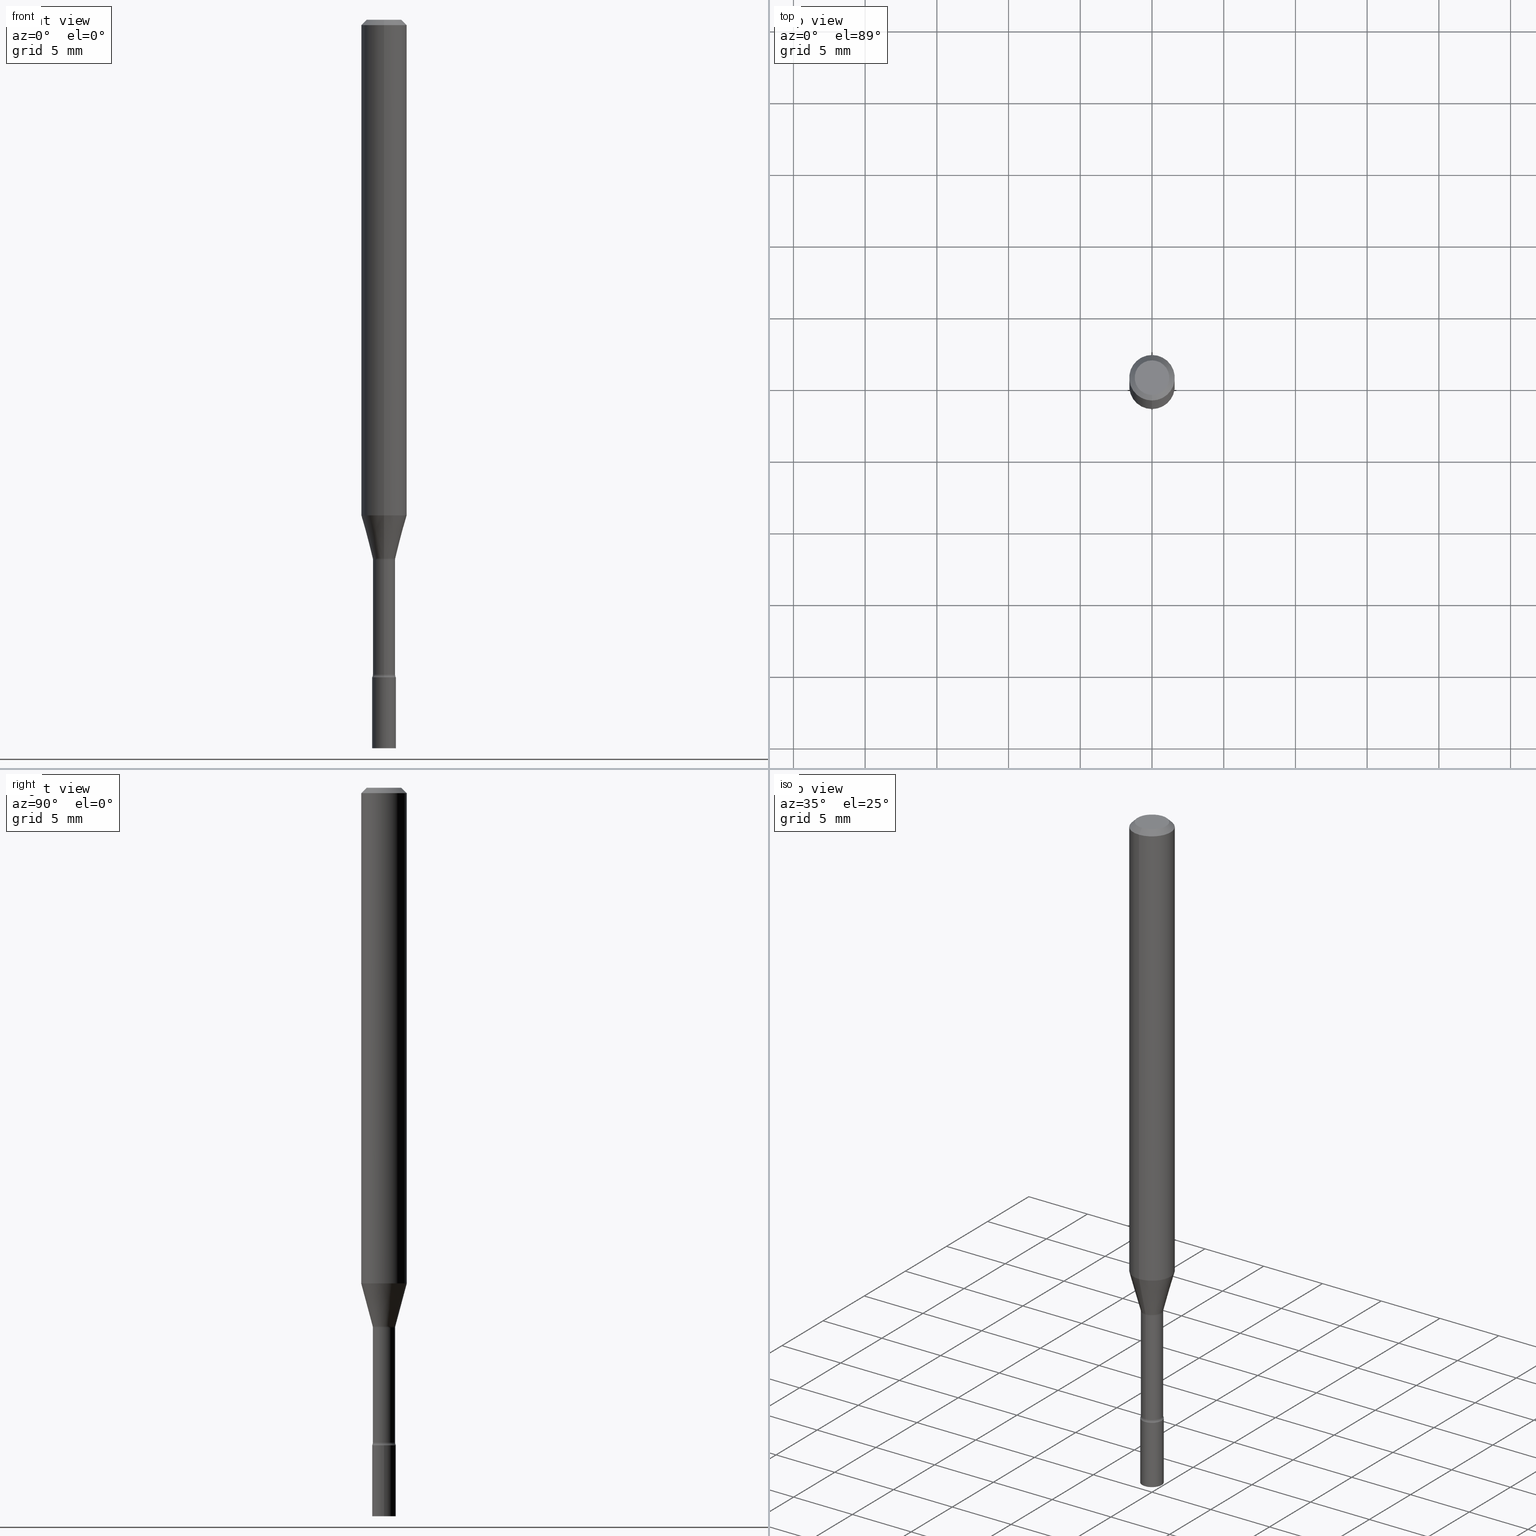
[diagram: canonical four-view strip — front | top / right | iso, engineering-drawing reading convention]
A machine part, canonical four-view strip (front | top / right | iso — engineering-drawing reading convention). The complete STEP part file that produces these views, byte-faithful:
ISO-10303-21;
HEADER;
FILE_DESCRIPTION (( 'STEP AP203' ),
    '1' );
FILE_NAME ('01325.STEP',
    '2024-03-08T21:14:09',
    ( '' ),
    ( '' ),
    'SwSTEP 2.0',
    'SolidWorks 2023',
    '' );
FILE_SCHEMA (( 'CONFIG_CONTROL_DESIGN' ));
ENDSEC;

DATA;
#1 = CARTESIAN_POINT ( 'NONE',  ( 3.614594936312366017E-29, -5.160781319692296101E-15, -1.478092501787273250 ) ) ;
#2 = EDGE_CURVE ( 'NONE', #294, #103, #283, .T. ) ;
#3 = ADVANCED_BREP_SHAPE_REPRESENTATION ( '01325', ( #263, #98, #183 ), #414 ) ;
#4 = ORIENTED_EDGE ( 'NONE', *, *, #335, .F. ) ;
#5 =( NAMED_UNIT ( * ) SI_UNIT ( $, .STERADIAN. ) SOLID_ANGLE_UNIT ( ) );
#6 = DIRECTION ( 'NONE',  ( -6.982962677686266711E-15, -1.000000000000000000, 3.491514444090614755E-15 ) ) ;
#7 = AXIS2_PLACEMENT_3D ( 'NONE', #409, #130, #495 ) ;
#8 = CARTESIAN_POINT ( 'NONE',  ( 3.668168533371585794E-31, -5.237271666135932017E-17, -0.01500000000000003067 ) ) ;
#9 = CIRCLE ( 'NONE', #137, 0.03250000000000000111 ) ;
#10 = PRODUCT_RELATED_PRODUCT_CATEGORY ( 'detail', '', ( #204 ) ) ;
#11 = DATE_AND_TIME ( #94, #436 ) ;
#12 = DIRECTION ( 'NONE',  ( -6.982962677686265922E-15, -1.000000000000000000, 3.491514444090614360E-15 ) ) ;
#13 = PERSON_AND_ORGANIZATION ( #312, #154 ) ;
#14 = COORDINATED_UNIVERSAL_TIME_OFFSET ( 5, 0, .BEHIND. ) ;
#15 = AXIS2_PLACEMENT_3D ( 'NONE', #89, #373, #213 ) ;
#16 = VERTEX_POINT ( 'NONE', #168 ) ;
#17 = CARTESIAN_POINT ( 'NONE',  ( 3.236522161387698617E-16, 0.04554999999999376908, -1.797604224178627641 ) ) ;
#18 = DATE_TIME_ROLE ( 'classification_date' ) ;
#19 = AXIS2_PLACEMENT_3D ( 'NONE', #166, #368, #6 ) ;
#20 = VERTEX_POINT ( 'NONE', #195 ) ;
#21 = ORIENTED_EDGE ( 'NONE', *, *, #223, .F. ) ;
#22 = ORIENTED_EDGE ( 'NONE', *, *, #320, .F. ) ;
#23 = CIRCLE ( 'NONE', #19, 0.04749999999999999362 ) ;
#24 = CIRCLE ( 'NONE', #160, 0.06250000000000000000 ) ;
#25 = VERTEX_POINT ( 'NONE', #276 ) ;
#26 = ADVANCED_FACE ( 'NONE', ( #407 ), #200, .F. ) ;
#27 = DIRECTION ( 'NONE',  ( -2.445445688914385754E-29, 3.491514444090614360E-15, 1.000000000000000000 ) ) ;
#28 = CARTESIAN_POINT ( 'NONE',  ( 4.414029468490465971E-29, -6.302183571583559709E-15, -1.804999999999999938 ) ) ;
#29 = CIRCLE ( 'NONE', #15, 0.03250000000000000111 ) ;
#30 = CYLINDRICAL_SURFACE ( 'NONE', #185, 0.03250000000000000111 ) ;
#31 = EDGE_CURVE ( 'NONE', #54, #205, #23, .T. ) ;
#32 = DIRECTION ( 'NONE',  ( -6.982962677686265922E-15, -1.000000000000000000, 4.370956789862821150E-15 ) ) ;
#33 = EDGE_CURVE ( 'NONE', #54, #16, #326, .T. ) ;
#34 = DIRECTION ( 'NONE',  ( -6.982962677686265922E-15, -1.000000000000000000, 3.491514444090614360E-15 ) ) ;
#35 = LOCAL_TIME ( 16, 14, 9.000000000000000000, #174 ) ;
#36 = DIRECTION ( 'NONE',  ( -2.445468806185136597E-29, 3.491481338843145583E-15, 1.000000000000000000 ) ) ;
#37 = CARTESIAN_POINT ( 'NONE',  ( 0.000000000000000000, 0.000000000000000000, 0.000000000000000000 ) ) ;
#38 = CARTESIAN_POINT ( 'NONE',  ( 3.316907271900976096E-16, 0.04749999999999999362, -1.803031053086112847E-16 ) ) ;
#39 = ORIENTED_EDGE ( 'NONE', *, *, #267, .T. ) ;
#40 = ORIENTED_EDGE ( 'NONE', *, *, #417, .T. ) ;
#41 = CARTESIAN_POINT ( 'NONE',  ( -0.03250000000000000111, -6.411616858027052188E-15, -2.000000000000000000 ) ) ;
#42 = ADVANCED_FACE ( 'NONE', ( #517 ), #72, .F. ) ;
#43 = ORIENTED_EDGE ( 'NONE', *, *, #33, .T. ) ;
#44 = APPROVAL_STATUS ( 'not_yet_approved' ) ;
#45 = VECTOR ( 'NONE', #123, 39.37007874015748854 ) ;
#46 = DIRECTION ( 'NONE',  ( -2.445445688914385754E-29, 3.491514444090614360E-15, 1.000000000000000000 ) ) ;
#47 = CLOSED_SHELL ( 'NONE', ( #164, #175, #188, #165 ) ) ;
#48 = AXIS2_PLACEMENT_3D ( 'NONE', #352, #106, #476 ) ;
#49 = COORDINATED_UNIVERSAL_TIME_OFFSET ( 5, 0, .BEHIND. ) ;
#50 = SECURITY_CLASSIFICATION_LEVEL ( 'unclassified' ) ;
#51 = ORIENTED_EDGE ( 'NONE', *, *, #33, .F. ) ;
#52 = MECHANICAL_CONTEXT ( 'NONE', #348, 'mechanical' ) ;
#53 = EDGE_CURVE ( 'NONE', #134, #99, #303, .T. ) ;
#54 = VERTEX_POINT ( 'NONE', #400 ) ;
#55 = APPLICATION_PROTOCOL_DEFINITION ( 'international standard', 'config_control_design', 1994, #348 ) ;
#56 = FACE_OUTER_BOUND ( 'NONE', #218, .T. ) ;
#57 = CC_DESIGN_APPROVAL ( #285, ( #394 ) ) ;
#58 = ORIENTED_EDGE ( 'NONE', *, *, #179, .T. ) ;
#59 = DIRECTION ( 'NONE',  ( 1.000000000000000000, -7.105427357601001070E-15, 4.926315913964436247E-29 ) ) ;
#60 = EDGE_CURVE ( 'NONE', #480, #428, #306, .T. ) ;
#61 = ORIENTED_EDGE ( 'NONE', *, *, #430, .F. ) ;
#62 = EDGE_LOOP ( 'NONE', ( #386, #264, #284, #346 ) ) ;
#63 = AXIS2_PLACEMENT_3D ( 'NONE', #393, #189, #398 ) ;
#64 = AXIS2_PLACEMENT_3D ( 'NONE', #191, #225, #150 ) ;
#65 = CARTESIAN_POINT ( 'NONE',  ( 0.000000000000000000, 0.000000000000000000, 0.000000000000000000 ) ) ;
#66 = CYLINDRICAL_SURFACE ( 'NONE', #336, 0.06250000000000000000 ) ;
#67 = EDGE_CURVE ( 'NONE', #294, #140, #292, .T. ) ;
#68 = AXIS2_PLACEMENT_3D ( 'NONE', #270, #434, #445 ) ;
#69 = CIRCLE ( 'NONE', #453, 0.03250000000000000111 ) ;
#70 = FACE_OUTER_BOUND ( 'NONE', #296, .T. ) ;
#71 = DIRECTION ( 'NONE',  ( 1.000000000000000000, -7.105427357601001070E-15, 4.926315913964436247E-29 ) ) ;
#72 = TOROIDAL_SURFACE ( 'NONE', #387, 0.04555000000000004184, 0.01500000000000001159 ) ;
#73 = DIRECTION ( 'NONE',  ( -6.982962677686265922E-15, -1.000000000000000000, 3.491514444090614755E-15 ) ) ;
#74 = CARTESIAN_POINT ( 'NONE',  ( 3.624088855083189206E-29, -5.174336376208013711E-15, -1.481974787463810728 ) ) ;
#75 = CC_DESIGN_DATE_AND_TIME_ASSIGNMENT ( #248, #128, ( #255 ) ) ;
#76 = ADVANCED_FACE ( 'NONE', ( #104 ), #469, .T. ) ;
#77 = CARTESIAN_POINT ( 'NONE',  ( 4.440892098500956497E-16, 0.06249999999999521910, -1.360760976698174973 ) ) ;
#78 = FACE_OUTER_BOUND ( 'NONE', #95, .T. ) ;
#79 = CARTESIAN_POINT ( 'NONE',  ( 4.395985056095466653E-29, -6.276301603345288080E-15, -1.797604224178627419 ) ) ;
#80 = CARTESIAN_POINT ( 'NONE',  ( -4.364351673553584879E-16, -0.06250000000000477396, -1.360760976698174307 ) ) ;
#81 = CARTESIAN_POINT ( 'NONE',  ( 0.03250000000000000111, -7.209908964711093729E-15, -2.000000000000000000 ) ) ;
#82 = ORIENTED_EDGE ( 'NONE', *, *, #60, .T. ) ;
#83 = APPROVAL ( #380, 'UNSPECIFIED' ) ;
#84 = CARTESIAN_POINT ( 'NONE',  ( 4.395985056095466653E-29, -6.276301603345288080E-15, -1.797604224178627419 ) ) ;
#85 = VERTEX_POINT ( 'NONE', #357 ) ;
#86 = EDGE_LOOP ( 'NONE', ( #419, #497, #254, #239 ) ) ;
#87 = CARTESIAN_POINT ( 'NONE',  ( -2.168985900527260742E-16, -0.03106111260566917637, -1.478092501787273250 ) ) ;
#88 = DATE_AND_TIME ( #172, #314 ) ;
#89 = CARTESIAN_POINT ( 'NONE',  ( 4.890937612370273194E-29, -6.982962677686291165E-15, -2.000000000000000000 ) ) ;
#90 = CIRCLE ( 'NONE', #416, 0.03055000000000000077 ) ;
#91 = CALENDAR_DATE ( 2024, 8, 3 ) ;
#92 = EDGE_CURVE ( 'NONE', #415, #408, #224, .T. ) ;
#93 = ADVANCED_FACE ( 'NONE', ( #155 ), #467, .F. ) ;
#94 = CALENDAR_DATE ( 2024, 8, 3 ) ;
#95 = EDGE_LOOP ( 'NONE', ( #324, #302, #21, #257 ) ) ;
#96 = PERSON_AND_ORGANIZATION_ROLE ( 'design_supplier' ) ;
#97 = CONICAL_SURFACE ( 'NONE', #127, 0.03106111260566401730, 0.2617993877991495189 ) ;
#98 = MANIFOLD_SOLID_BREP ( 'Body-Move/Copy2[2]', #354 ) ;
#99 = VERTEX_POINT ( 'NONE', #77 ) ;
#100 = EDGE_LOOP ( 'NONE', ( #506, #39 ) ) ;
#101 = ORIENTED_EDGE ( 'NONE', *, *, #376, .T. ) ;
#102 = CYLINDRICAL_SURFACE ( 'NONE', #307, 0.06250000000000000000 ) ;
#103 = VERTEX_POINT ( 'NONE', #358 ) ;
#104 = FACE_OUTER_BOUND ( 'NONE', #280, .T. ) ;
#105 = CIRCLE ( 'NONE', #144, 0.03106111260566401730 ) ;
#106 = DIRECTION ( 'NONE',  ( 2.438088387897960049E-29, -3.491481338843145188E-15, -1.000000000000000000 ) ) ;
#107 = CARTESIAN_POINT ( 'NONE',  ( -3.773273898774340269E-16, -0.04749999999999999362, 1.369345976656899277E-16 ) ) ;
#108 =( LENGTH_UNIT ( ) NAMED_UNIT ( * ) SI_UNIT ( $, .METRE. ) );
#109 = CIRCLE ( 'NONE', #64, 0.03250000000000000111 ) ;
#110 = DIRECTION ( 'NONE',  ( -6.982962677686265922E-15, -1.000000000000000000, 0.000000000000000000 ) ) ;
#111 = DIRECTION ( 'NONE',  ( -6.982962677686266711E-15, -1.000000000000000000, 3.491514444090614755E-15 ) ) ;
#112 = DIRECTION ( 'NONE',  ( -6.982962677686265922E-15, -1.000000000000000000, 0.000000000000000000 ) ) ;
#113 = CARTESIAN_POINT ( 'NONE',  ( 4.364351673553919652E-16, 0.06249999999999995143, -0.01500000000000024751 ) ) ;
#114 = CARTESIAN_POINT ( 'NONE',  ( 4.395943500391912807E-29, -6.276361113477980336E-15, -1.797604224178627419 ) ) ;
#115 = CARTESIAN_POINT ( 'NONE',  ( 3.614594936312366017E-29, -5.160781319692296101E-15, -1.478092501787273250 ) ) ;
#116 = ORIENTED_EDGE ( 'NONE', *, *, #340, .T. ) ;
#117 = DIRECTION ( 'NONE',  ( -6.982962677686265922E-15, -1.000000000000000000, 3.491514444090614360E-15 ) ) ;
#118 = DIRECTION ( 'NONE',  ( -6.982962677686265133E-15, -1.000000000000000000, 0.000000000000000000 ) ) ;
#119 = ORIENTED_EDGE ( 'NONE', *, *, #237, .F. ) ;
#120 = EDGE_LOOP ( 'NONE', ( #464, #493 ) ) ;
#121 = APPROVAL_PERSON_ORGANIZATION ( #413, #508, #214 ) ;
#122 = ORIENTED_EDGE ( 'NONE', *, *, #319, .F. ) ;
#123 = DIRECTION ( 'NONE',  ( -1.807323732225324617E-15, -0.2588190451025174088, 0.9659258262890690894 ) ) ;
#124 = DIRECTION ( 'NONE',  ( 7.105427357601001859E-15, 1.000000000000000000, 0.000000000000000000 ) ) ;
#125 = ORIENTED_EDGE ( 'NONE', *, *, #417, .F. ) ;
#126 = PERSON_AND_ORGANIZATION ( #312, #154 ) ;
#127 = AXIS2_PLACEMENT_3D ( 'NONE', #115, #240, #201 ) ;
#128 = DATE_TIME_ROLE ( 'creation_date' ) ;
#129 = ADVANCED_FACE ( 'NONE', ( #515 ), #429, .F. ) ;
#130 = DIRECTION ( 'NONE',  ( -1.000000000000000000, 6.982962677686265922E-15, -4.883557194083112901E-29 ) ) ;
#131 = VECTOR ( 'NONE', #193, 39.37007874015748143 ) ;
#132 = PERSON_AND_ORGANIZATION ( #312, #154 ) ;
#133 = ORIENTED_EDGE ( 'NONE', *, *, #187, .F. ) ;
#134 = VERTEX_POINT ( 'NONE', #80 ) ;
#135 = CC_DESIGN_PERSON_AND_ORGANIZATION_ASSIGNMENT ( #13, #374, ( #159 ) ) ;
#136 = CIRCLE ( 'NONE', #499, 0.01500000000000001159 ) ;
#137 = AXIS2_PLACEMENT_3D ( 'NONE', #399, #152, #442 ) ;
#138 = ORIENTED_EDGE ( 'NONE', *, *, #260, .F. ) ;
#139 = EDGE_LOOP ( 'NONE', ( #22, #221, #58, #258 ) ) ;
#140 = VERTEX_POINT ( 'NONE', #143 ) ;
#141 = CIRCLE ( 'NONE', #68, 0.03106111260566401730 ) ;
#142 = EDGE_CURVE ( 'NONE', #294, #85, #388, .T. ) ;
#143 = CARTESIAN_POINT ( 'NONE',  ( -2.269462870247594722E-16, -0.03250000000000630163, -1.804999999999999938 ) ) ;
#144 = AXIS2_PLACEMENT_3D ( 'NONE', #330, #288, #274 ) ;
#145 = AXIS2_PLACEMENT_3D ( 'NONE', #65, #513, #73 ) ;
#146 = LOCAL_TIME ( 16, 14, 9.000000000000000000, #14 ) ;
#147 = PLANE ( 'NONE',  #347 ) ;
#148 = DIMENSIONAL_EXPONENTS ( 1.000000000000000000, 0.000000000000000000, 0.000000000000000000, 0.000000000000000000, 0.000000000000000000, 0.000000000000000000, 0.000000000000000000 ) ;
#149 = PRODUCT_DEFINITION_SHAPE ( 'NONE', 'NONE',  #255 ) ;
#150 = DIRECTION ( 'NONE',  ( -6.982962677686265922E-15, -1.000000000000000000, 0.000000000000000000 ) ) ;
#151 = EDGE_CURVE ( 'NONE', #140, #182, #109, .T. ) ;
#152 = DIRECTION ( 'NONE',  ( -2.445468806185136597E-29, 3.491481338843145583E-15, 1.000000000000000000 ) ) ;
#153 = VECTOR ( 'NONE', #498, 39.37007874015748143 ) ;
#154 = ORGANIZATION ( 'UNSPECIFIED', 'UNSPECIFIED', '' ) ;
#155 = FACE_OUTER_BOUND ( 'NONE', #405, .T. ) ;
#156 = LINE ( 'NONE', #316, #477 ) ;
#157 = CARTESIAN_POINT ( 'NONE',  ( -4.287811248607203282E-16, -0.06250000000000005551, -0.01499999999999981209 ) ) ;
#158 = AXIS2_PLACEMENT_3D ( 'NONE', #321, #310, #233 ) ;
#159 = PRODUCT_DEFINITION_FORMATION_WITH_SPECIFIED_SOURCE ( 'ANY', '', #204, .NOT_KNOWN. ) ;
#160 = AXIS2_PLACEMENT_3D ( 'NONE', #161, #27, #322 ) ;
#161 = CARTESIAN_POINT ( 'NONE',  ( 3.668168533371585794E-31, -5.237271666135932017E-17, -0.01500000000000003067 ) ) ;
#162 = FACE_OUTER_BOUND ( 'NONE', #446, .T. ) ;
#163 = CARTESIAN_POINT ( 'NONE',  ( 0.03250000000000000111, -6.529070103636681305E-15, -1.804999999999999938 ) ) ;
#164 = ADVANCED_FACE ( 'NONE', ( #509 ), #236, .T. ) ;
#165 = ADVANCED_FACE ( 'NONE', ( #70 ), #278, .T. ) ;
#166 = CARTESIAN_POINT ( 'NONE',  ( 7.070355336668842799E-46, -1.009478472359427941E-31, -2.891233842861424827E-17 ) ) ;
#167 = CYLINDRICAL_SURFACE ( 'NONE', #246, 0.03055000000000001464 ) ;
#168 = CARTESIAN_POINT ( 'NONE',  ( 4.440892098500961428E-16, 0.06249999999999995143, -0.01500000000000024751 ) ) ;
#169 = ORIENTED_EDGE ( 'NONE', *, *, #327, .T. ) ;
#170 = CARTESIAN_POINT ( 'NONE',  ( 3.668168533371585794E-31, -5.237271666135932017E-17, -0.01500000000000003067 ) ) ;
#171 = CC_DESIGN_APPROVAL ( #508, ( #159 ) ) ;
#172 = CALENDAR_DATE ( 2024, 8, 3 ) ;
#173 = CC_DESIGN_DATE_AND_TIME_ASSIGNMENT ( #11, #18, ( #394 ) ) ;
#174 = COORDINATED_UNIVERSAL_TIME_OFFSET ( 5, 0, .BEHIND. ) ;
#175 = ADVANCED_FACE ( 'NONE', ( #507 ), #147, .T. ) ;
#176 = CALENDAR_DATE ( 2024, 8, 3 ) ;
#177 = EDGE_LOOP ( 'NONE', ( #412, #426, #138, #211 ) ) ;
#178 = APPROVAL_ROLE ( '' ) ;
#179 = EDGE_CURVE ( 'NONE', #134, #25, #266, .T. ) ;
#180 = ORIENTED_EDGE ( 'NONE', *, *, #151, .F. ) ;
#181 = LINE ( 'NONE', #379, #300 ) ;
#182 = VERTEX_POINT ( 'NONE', #309 ) ;
#183 = AXIS2_PLACEMENT_3D ( 'NONE', #333, #209, #243 ) ;
#184 = ORIENTED_EDGE ( 'NONE', *, *, #458, .F. ) ;
#185 = AXIS2_PLACEMENT_3D ( 'NONE', #470, #196, #511 ) ;
#186 = EDGE_LOOP ( 'NONE', ( #125, #411, #43, #101 ) ) ;
#187 = EDGE_CURVE ( 'NONE', #85, #294, #502, .T. ) ;
#188 = ADVANCED_FACE ( 'NONE', ( #437 ), #30, .T. ) ;
#189 = DIRECTION ( 'NONE',  ( -1.000000000000000000, 6.982962677686265922E-15, -4.883557194083112901E-29 ) ) ;
#190 = DIRECTION ( 'NONE',  ( -2.438088387897960049E-29, 3.491481338843145188E-15, 1.000000000000000000 ) ) ;
#191 = CARTESIAN_POINT ( 'NONE',  ( 4.414029468490465971E-29, -6.302183571583559709E-15, -1.804999999999999938 ) ) ;
#192 = DIRECTION ( 'NONE',  ( -2.445445688914385193E-29, 3.491514444090614360E-15, 1.000000000000000000 ) ) ;
#193 = DIRECTION ( 'NONE',  ( -2.445468806185136877E-29, 3.491481338843145188E-15, 1.000000000000000000 ) ) ;
#194 =( CONVERSION_BASED_UNIT ( 'INCH', #482 ) LENGTH_UNIT ( ) NAMED_UNIT ( #148 ) );
#195 = CARTESIAN_POINT ( 'NONE',  ( 3.323958445579713036E-16, 0.03106111260565885129, -1.478092501787273250 ) ) ;
#196 = DIRECTION ( 'NONE',  ( -2.445468806185136597E-29, 3.491481338843145583E-15, 1.000000000000000000 ) ) ;
#197 = DIRECTION ( 'NONE',  ( 6.982962677686265922E-15, 1.000000000000000000, -3.483106191921935554E-15 ) ) ;
#198 = FACE_OUTER_BOUND ( 'NONE', #86, .T. ) ;
#199 = LOCAL_TIME ( 16, 14, 9.000000000000000000, #491 ) ;
#200 = PLANE ( 'NONE',  #230 ) ;
#201 = DIRECTION ( 'NONE',  ( -6.982962677686265922E-15, -1.000000000000000000, 0.000000000000000000 ) ) ;
#202 =( NAMED_UNIT ( * ) PLANE_ANGLE_UNIT ( ) SI_UNIT ( $, .RADIAN. ) );
#203 = DIRECTION ( 'NONE',  ( 6.982962677686265922E-15, 1.000000000000000000, -3.491514444090614360E-15 ) ) ;
#204 = PRODUCT ( '01325', '01325', '', ( #52 ) ) ;
#205 = VERTEX_POINT ( 'NONE', #107 ) ;
#206 = CC_DESIGN_SECURITY_CLASSIFICATION ( #394, ( #159 ) ) ;
#207 = EDGE_CURVE ( 'NONE', #25, #16, #24, .T. ) ;
#208 = AXIS2_PLACEMENT_3D ( 'NONE', #447, #371, #111 ) ;
#209 = DIRECTION ( 'NONE',  ( 0.000000000000000000, 0.000000000000000000, 1.000000000000000000 ) ) ;
#210 = PERSON_AND_ORGANIZATION_ROLE ( 'classification_officer' ) ;
#211 = ORIENTED_EDGE ( 'NONE', *, *, #60, .F. ) ;
#212 = CIRCLE ( 'NONE', #289, 0.06250000000000000000 ) ;
#213 = DIRECTION ( 'NONE',  ( 1.000000000000000000, -6.982962677686258033E-15, 0.000000000000000000 ) ) ;
#214 = APPROVAL_ROLE ( '' ) ;
#215 = ORIENTED_EDGE ( 'NONE', *, *, #465, .T. ) ;
#216 = AXIS2_PLACEMENT_3D ( 'NONE', #392, #192, #468 ) ;
#217 = APPLICATION_PROTOCOL_DEFINITION ( 'international standard', 'config_control_design', 1994, #390 ) ;
#218 = EDGE_LOOP ( 'NONE', ( #424, #40, #421, #51 ) ) ;
#219 = EDGE_LOOP ( 'NONE', ( #4, #489, #304, #61 ) ) ;
#220 = CC_DESIGN_APPROVAL ( #83, ( #255 ) ) ;
#221 = ORIENTED_EDGE ( 'NONE', *, *, #430, .T. ) ;
#222 = CC_DESIGN_PERSON_AND_ORGANIZATION_ASSIGNMENT ( #295, #96, ( #159 ) ) ;
#223 = EDGE_CURVE ( 'NONE', #103, #461, #455, .T. ) ;
#224 = LINE ( 'NONE', #351, #131 ) ;
#225 = DIRECTION ( 'NONE',  ( -2.445445688914385754E-29, 3.491514444090614360E-15, 1.000000000000000000 ) ) ;
#226 = CIRCLE ( 'NONE', #7, 0.01500000000000000291 ) ;
#227 = AXIS2_PLACEMENT_3D ( 'NONE', #1, #485, #112 ) ;
#228 = DIRECTION ( 'NONE',  ( -6.982962677686265133E-15, -1.000000000000000000, 0.000000000000000000 ) ) ;
#229 = DIRECTION ( 'NONE',  ( -6.982962677686265922E-15, -1.000000000000000000, 0.000000000000000000 ) ) ;
#230 = AXIS2_PLACEMENT_3D ( 'NONE', #38, #366, #203 ) ;
#231 = DIRECTION ( 'NONE',  ( -6.982962677686265922E-15, -1.000000000000000000, 0.000000000000000000 ) ) ;
#232 = FACE_OUTER_BOUND ( 'NONE', #219, .T. ) ;
#233 = DIRECTION ( 'NONE',  ( -6.982962677686265922E-15, -1.000000000000000000, 4.370956789862821150E-15 ) ) ;
#234 = DIRECTION ( 'NONE',  ( -2.445445688914385754E-29, 3.491514444090614360E-15, 1.000000000000000000 ) ) ;
#235 = DIRECTION ( 'NONE',  ( -2.445445688914385754E-29, 3.491514444090614360E-15, 1.000000000000000000 ) ) ;
#236 = CYLINDRICAL_SURFACE ( 'NONE', #272, 0.03250000000000000111 ) ;
#237 = EDGE_CURVE ( 'NONE', #461, #103, #90, .T. ) ;
#238 = ORIENTED_EDGE ( 'NONE', *, *, #320, .T. ) ;
#239 = ORIENTED_EDGE ( 'NONE', *, *, #151, .T. ) ;
#240 = DIRECTION ( 'NONE',  ( -2.445445688914385754E-29, 3.491514444090614360E-15, 1.000000000000000000 ) ) ;
#241 = DIRECTION ( 'NONE',  ( -2.445445688914385754E-29, 3.491514444090614360E-15, 1.000000000000000000 ) ) ;
#242 = ORIENTED_EDGE ( 'NONE', *, *, #383, .T. ) ;
#243 = DIRECTION ( 'NONE',  ( 1.000000000000000000, 0.000000000000000000, 0.000000000000000000 ) ) ;
#244 = EDGE_CURVE ( 'NONE', #85, #461, #156, .T. ) ;
#245 = TOROIDAL_SURFACE ( 'NONE', #514, 0.04555000000000000715, 0.01499999999999999944 ) ;
#246 = AXIS2_PLACEMENT_3D ( 'NONE', #37, #241, #448 ) ;
#247 = ORIENTED_EDGE ( 'NONE', *, *, #277, .F. ) ;
#248 = DATE_AND_TIME ( #91, #146 ) ;
#249 = VECTOR ( 'NONE', #361, 39.37007874015748143 ) ;
#250 = AXIS2_PLACEMENT_3D ( 'NONE', #114, #362, #110 ) ;
#251 = DATE_AND_TIME ( #341, #199 ) ;
#252 = DIRECTION ( 'NONE',  ( -6.982962677686265922E-15, -1.000000000000000000, 3.491514444090614360E-15 ) ) ;
#253 = LINE ( 'NONE', #331, #153 ) ;
#254 = ORIENTED_EDGE ( 'NONE', *, *, #67, .T. ) ;
#255 = PRODUCT_DEFINITION ( 'UNKNOWN', '', #159, #443 ) ;
#256 = PERSON_AND_ORGANIZATION ( #312, #154 ) ;
#257 = ORIENTED_EDGE ( 'NONE', *, *, #2, .F. ) ;
#258 = ORIENTED_EDGE ( 'NONE', *, *, #376, .F. ) ;
#259 = ORIENTED_EDGE ( 'NONE', *, *, #67, .F. ) ;
#260 = EDGE_CURVE ( 'NONE', #428, #408, #520, .T. ) ;
#261 = ORIENTED_EDGE ( 'NONE', *, *, #53, .F. ) ;
#262 = AXIS2_PLACEMENT_3D ( 'NONE', #441, #402, #197 ) ;
#263 = MANIFOLD_SOLID_BREP ( 'Body-Move/Copy2[1]', #47 ) ;
#264 = ORIENTED_EDGE ( 'NONE', *, *, #383, .F. ) ;
#265 = VECTOR ( 'NONE', #444, 39.37007874015748143 ) ;
#266 = LINE ( 'NONE', #311, #365 ) ;
#267 = EDGE_CURVE ( 'NONE', #205, #54, #438, .T. ) ;
#268 = AXIS2_PLACEMENT_3D ( 'NONE', #84, #356, #512 ) ;
#269 = CARTESIAN_POINT ( 'NONE',  ( 3.624123114295597738E-29, -5.174287315065933391E-15, -1.481974787463811172 ) ) ;
#270 = CARTESIAN_POINT ( 'NONE',  ( 3.614594936312366017E-29, -5.160781319692296101E-15, -1.478092501787273250 ) ) ;
#271 = UNCERTAINTY_MEASURE_WITH_UNIT (LENGTH_MEASURE( 1.000000000000000082E-05 ), #194, 'distance_accuracy_value', 'NONE');
#272 = AXIS2_PLACEMENT_3D ( 'NONE', #440, #315, #519 ) ;
#273 = DIRECTION ( 'NONE',  ( -2.445445688914385754E-29, 3.491514444090614360E-15, 1.000000000000000000 ) ) ;
#274 = DIRECTION ( 'NONE',  ( -6.982962677686265922E-15, -1.000000000000000000, 0.000000000000000000 ) ) ;
#275 = CARTESIAN_POINT ( 'NONE',  ( 2.170708057747546405E-16, 0.03054999999999482435, -1.481974787463810728 ) ) ;
#276 = CARTESIAN_POINT ( 'NONE',  ( -4.364351673553912750E-16, -0.06250000000000005551, -0.01499999999999981209 ) ) ;
#277 = EDGE_CURVE ( 'NONE', #20, #349, #105, .T. ) ;
#278 = PLANE ( 'NONE',  #48 ) ;
#279 = DIRECTION ( 'NONE',  ( -2.445445688914385754E-29, 3.491514444090614360E-15, 1.000000000000000000 ) ) ;
#280 = EDGE_LOOP ( 'NONE', ( #287, #332, #378, #119 ) ) ;
#281 = FACE_OUTER_BOUND ( 'NONE', #186, .T. ) ;
#282 = APPROVAL_PERSON_ORGANIZATION ( #126, #285, #178 ) ;
#283 = LINE ( 'NONE', #486, #265 ) ;
#284 = ORIENTED_EDGE ( 'NONE', *, *, #319, .T. ) ;
#285 = APPROVAL ( #44, 'UNSPECIFIED' ) ;
#286 = APPROVAL_STATUS ( 'not_yet_approved' ) ;
#287 = ORIENTED_EDGE ( 'NONE', *, *, #244, .F. ) ;
#288 = DIRECTION ( 'NONE',  ( -2.445445688914385754E-29, 3.491514444090614360E-15, 1.000000000000000000 ) ) ;
#289 = AXIS2_PLACEMENT_3D ( 'NONE', #170, #279, #439 ) ;
#290 = ADVANCED_FACE ( 'NONE', ( #281 ), #396, .T. ) ;
#291 = PERSON_AND_ORGANIZATION_ROLE ( 'creator' ) ;
#292 = CIRCLE ( 'NONE', #63, 0.01500000000000001159 ) ;
#293 = AXIS2_PLACEMENT_3D ( 'NONE', #449, #36, #328 ) ;
#294 = VERTEX_POINT ( 'NONE', #363 ) ;
#295 = PERSON_AND_ORGANIZATION ( #312, #154 ) ;
#296 = EDGE_LOOP ( 'NONE', ( #462, #299 ) ) ;
#297 = ADVANCED_FACE ( 'NONE', ( #162 ), #97, .T. ) ;
#298 = SHAPE_DEFINITION_REPRESENTATION ( #149, #3 ) ;
#299 = ORIENTED_EDGE ( 'NONE', *, *, #327, .F. ) ;
#300 = VECTOR ( 'NONE', #488, 39.37007874015748854 ) ;
#301 = AXIS2_PLACEMENT_3D ( 'NONE', #475, #403, #313 ) ;
#302 = ORIENTED_EDGE ( 'NONE', *, *, #244, .T. ) ;
#303 = CIRCLE ( 'NONE', #158, 0.06250000000000000000 ) ;
#304 = ORIENTED_EDGE ( 'NONE', *, *, #458, .T. ) ;
#305 = EDGE_LOOP ( 'NONE', ( #133, #116, #215, #259 ) ) ;
#306 = LINE ( 'NONE', #466, #518 ) ;
#307 = AXIS2_PLACEMENT_3D ( 'NONE', #389, #334, #252 ) ;
#308 = DIRECTION ( 'NONE',  ( -2.445468806185136877E-29, 3.491481338843145188E-15, 1.000000000000000000 ) ) ;
#309 = CARTESIAN_POINT ( 'NONE',  ( 2.309263891220766952E-16, 0.03249999999999370059, -1.804999999999999938 ) ) ;
#310 = DIRECTION ( 'NONE',  ( -2.445445688914385754E-29, 3.491514444090614360E-15, 1.000000000000000000 ) ) ;
#311 = CARTESIAN_POINT ( 'NONE',  ( -4.364351673553916201E-16, -0.06250000000000000000, 2.182196527556633975E-16 ) ) ;
#312 = PERSON ( 'UNSPECIFIED', 'UNSPECIFIED', 'UNSPECIFIED', ('UNSPECIFIED'), ('UNSPECIFIED'), ('UNSPECIFIED') ) ;
#313 = DIRECTION ( 'NONE',  ( 1.000000000000000000, -6.982962677686258033E-15, 0.000000000000000000 ) ) ;
#314 = LOCAL_TIME ( 16, 14, 9.000000000000000000, #450 ) ;
#315 = DIRECTION ( 'NONE',  ( -2.445468806185136597E-29, 3.491481338843145583E-15, 1.000000000000000000 ) ) ;
#316 = CARTESIAN_POINT ( 'NONE',  ( 2.170708057747106862E-16, 0.03055000000000001464, -1.066657662669683377E-16 ) ) ;
#317 = LINE ( 'NONE', #479, #45 ) ;
#318 = AXIS2_PLACEMENT_3D ( 'NONE', #353, #431, #231 ) ;
#319 = EDGE_CURVE ( 'NONE', #349, #103, #226, .T. ) ;
#320 = EDGE_CURVE ( 'NONE', #99, #16, #253, .T. ) ;
#321 = CARTESIAN_POINT ( 'NONE',  ( 3.327667064109479713E-29, -4.751116605096527782E-15, -1.360760976698174529 ) ) ;
#322 = DIRECTION ( 'NONE',  ( -6.982962677686265922E-15, -1.000000000000000000, 3.483106191921935554E-15 ) ) ;
#323 = DIRECTION ( 'NONE',  ( -2.445445688914385754E-29, 3.491514444090614360E-15, 1.000000000000000000 ) ) ;
#324 = ORIENTED_EDGE ( 'NONE', *, *, #142, .T. ) ;
#325 = DIRECTION ( 'NONE',  ( -2.445445688914385754E-29, 3.491514444090614360E-15, 1.000000000000000000 ) ) ;
#326 = LINE ( 'NONE', #113, #249 ) ;
#327 = EDGE_CURVE ( 'NONE', #415, #480, #29, .T. ) ;
#328 = DIRECTION ( 'NONE',  ( 1.000000000000000000, -6.982962677686258033E-15, 0.000000000000000000 ) ) ;
#329 = DIRECTION ( 'NONE',  ( 7.105427357600997914E-15, 1.000000000000000000, 0.000000000000000000 ) ) ;
#330 = CARTESIAN_POINT ( 'NONE',  ( 3.614594936312366017E-29, -5.160781319692296101E-15, -1.478092501787273250 ) ) ;
#331 = CARTESIAN_POINT ( 'NONE',  ( 4.440892098500625669E-16, 0.06250000000000000000, -2.182196527556633975E-16 ) ) ;
#332 = ORIENTED_EDGE ( 'NONE', *, *, #187, .T. ) ;
#333 = CARTESIAN_POINT ( 'NONE',  ( 0.000000000000000000, 0.000000000000000000, 0.000000000000000000 ) ) ;
#334 = DIRECTION ( 'NONE',  ( -2.445445688914385754E-29, 3.491514444090614360E-15, 1.000000000000000000 ) ) ;
#335 = EDGE_CURVE ( 'NONE', #20, #99, #181, .T. ) ;
#336 = AXIS2_PLACEMENT_3D ( 'NONE', #463, #451, #117 ) ;
#337 = CIRCLE ( 'NONE', #473, 0.01500000000000000291 ) ;
#338 = APPROVAL_ROLE ( '' ) ;
#339 = ORIENTED_EDGE ( 'NONE', *, *, #494, .F. ) ;
#340 = EDGE_CURVE ( 'NONE', #85, #182, #136, .T. ) ;
#341 = CALENDAR_DATE ( 2024, 8, 3 ) ;
#342 = CARTESIAN_POINT ( 'NONE',  ( 3.624123114295597738E-29, -5.174287315065933391E-15, -1.481974787463811172 ) ) ;
#343 = ORIENTED_EDGE ( 'NONE', *, *, #465, .F. ) ;
#344 = CC_DESIGN_PERSON_AND_ORGANIZATION_ASSIGNMENT ( #132, #459, ( #204 ) ) ;
#345 = CONICAL_SURFACE ( 'NONE', #227, 0.03106111260566401730, 0.2617993877991495189 ) ;
#346 = ORIENTED_EDGE ( 'NONE', *, *, #223, .T. ) ;
#347 = AXIS2_PLACEMENT_3D ( 'NONE', #355, #190, #401 ) ;
#348 = APPLICATION_CONTEXT ( 'configuration controlled 3d designs of mechanical parts and assemblies' ) ;
#349 = VERTEX_POINT ( 'NONE', #87 ) ;
#350 = FACE_OUTER_BOUND ( 'NONE', #385, .T. ) ;
#351 = CARTESIAN_POINT ( 'NONE',  ( -0.03250000000000000111, 2.309263891220325683E-16, -1.598653904332844407E-30 ) ) ;
#352 = CARTESIAN_POINT ( 'NONE',  ( 2.269462870248525577E-16, 0.03249999999999301364, -2.000000000000000000 ) ) ;
#353 = CARTESIAN_POINT ( 'NONE',  ( 4.395943500391912807E-29, -6.276361113477980336E-15, -1.797604224178627419 ) ) ;
#354 = CLOSED_SHELL ( 'NONE', ( #367, #505, #42, #375, #359, #297, #435, #360, #290, #26, #93, #484, #76, #129 ) ) ;
#355 = CARTESIAN_POINT ( 'NONE',  ( 4.414071195164171423E-29, -6.302123816611877952E-15, -1.804999999999999938 ) ) ;
#356 = DIRECTION ( 'NONE',  ( -2.445445688914385754E-29, 3.491514444090614360E-15, 1.000000000000000000 ) ) ;
#357 = CARTESIAN_POINT ( 'NONE',  ( 2.239985974484157418E-16, 0.03054999999999375923, -1.797604224178627419 ) ) ;
#358 = CARTESIAN_POINT ( 'NONE',  ( -2.133295098032791645E-16, -0.03055000000000517371, -1.481974787463810728 ) ) ;
#359 = ADVANCED_FACE ( 'NONE', ( #510 ), #102, .T. ) ;
#360 = ADVANCED_FACE ( 'NONE', ( #472 ), #66, .T. ) ;
#361 = DIRECTION ( 'NONE',  ( 4.937700262164548042E-15, 0.7071067811865451302, -0.7071067811865499042 ) ) ;
#362 = DIRECTION ( 'NONE',  ( -2.445445688914385754E-29, 3.491514444090614360E-15, 1.000000000000000000 ) ) ;
#363 = CARTESIAN_POINT ( 'NONE',  ( -2.133295098032716950E-16, -0.03055000000000630822, -1.797604224178627419 ) ) ;
#364 = DIRECTION ( 'NONE',  ( 2.445445688914385754E-29, -3.491514444090614360E-15, -1.000000000000000000 ) ) ;
#365 = VECTOR ( 'NONE', #474, 39.37007874015748143 ) ;
#366 = DIRECTION ( 'NONE',  ( 2.445445688914385193E-29, -3.491514444090614360E-15, -1.000000000000000000 ) ) ;
#367 = ADVANCED_FACE ( 'NONE', ( #350 ), #245, .F. ) ;
#368 = DIRECTION ( 'NONE',  ( -2.445445688914385754E-29, 3.491514444090614360E-15, 1.000000000000000000 ) ) ;
#369 = CARTESIAN_POINT ( 'NONE',  ( 3.327667064109479713E-29, -4.751116605096527782E-15, -1.360760976698174529 ) ) ;
#370 = APPROVAL_PERSON_ORGANIZATION ( #256, #83, #338 ) ;
#371 = DIRECTION ( 'NONE',  ( -2.445445688914385754E-29, 3.491514444090614360E-15, 1.000000000000000000 ) ) ;
#372 = AXIS2_PLACEMENT_3D ( 'NONE', #432, #273, #228 ) ;
#373 = DIRECTION ( 'NONE',  ( -2.445468806185136597E-29, 3.491481338843145583E-15, 1.000000000000000000 ) ) ;
#374 = PERSON_AND_ORGANIZATION_ROLE ( 'creator' ) ;
#375 = ADVANCED_FACE ( 'NONE', ( #56 ), #427, .T. ) ;
#376 = EDGE_CURVE ( 'NONE', #16, #25, #212, .T. ) ;
#377 = AXIS2_PLACEMENT_3D ( 'NONE', #8, #364, #410 ) ;
#378 = ORIENTED_EDGE ( 'NONE', *, *, #2, .T. ) ;
#379 = CARTESIAN_POINT ( 'NONE',  ( 2.207024792658465631E-16, 0.03106111260565885476, -1.478092501787273250 ) ) ;
#380 = APPROVAL_STATUS ( 'not_yet_approved' ) ;
#381 = ORIENTED_EDGE ( 'NONE', *, *, #335, .T. ) ;
#382 = DATE_AND_TIME ( #176, #35 ) ;
#383 = EDGE_CURVE ( 'NONE', #349, #20, #141, .T. ) ;
#384 = ORIENTED_EDGE ( 'NONE', *, *, #391, .T. ) ;
#385 = EDGE_LOOP ( 'NONE', ( #247, #384, #457, #122 ) ) ;
#386 = ORIENTED_EDGE ( 'NONE', *, *, #391, .F. ) ;
#387 = AXIS2_PLACEMENT_3D ( 'NONE', #79, #235, #34 ) ;
#388 = CIRCLE ( 'NONE', #318, 0.03055000000000003199 ) ;
#389 = CARTESIAN_POINT ( 'NONE',  ( 0.000000000000000000, 0.000000000000000000, 0.000000000000000000 ) ) ;
#390 = APPLICATION_CONTEXT ( 'configuration controlled 3d designs of mechanical parts and assemblies' ) ;
#391 = EDGE_CURVE ( 'NONE', #20, #461, #337, .T. ) ;
#392 = CARTESIAN_POINT ( 'NONE',  ( 2.269462870248477753E-16, 0.03249999999999370059, -1.804999999999999938 ) ) ;
#393 = CARTESIAN_POINT ( 'NONE',  ( -3.180739499685657055E-16, -0.04555000000000632154, -1.797604224178627197 ) ) ;
#394 = SECURITY_CLASSIFICATION ( '', '', #50 ) ;
#395 = DIRECTION ( 'NONE',  ( -6.982962677686265922E-15, -1.000000000000000000, 3.491514444090614360E-15 ) ) ;
#396 = CONICAL_SURFACE ( 'NONE', #262, 0.06250000000000000000, 0.7853981633974483900 ) ;
#397 = CARTESIAN_POINT ( 'NONE',  ( 3.236522161387618745E-16, 0.04554999999999483767, -1.481974787463811394 ) ) ;
#398 = DIRECTION ( 'NONE',  ( -6.982962677686266711E-15, -1.000000000000000000, 0.000000000000000000 ) ) ;
#399 = CARTESIAN_POINT ( 'NONE',  ( 4.414071195164171423E-29, -6.302123816611877952E-15, -1.804999999999999938 ) ) ;
#400 = CARTESIAN_POINT ( 'NONE',  ( 3.840629472727447874E-16, 0.04749999999999999362, -1.947592745229184365E-16 ) ) ;
#401 = DIRECTION ( 'NONE',  ( 1.000000000000000000, -6.982962677686265922E-15, 4.876176775795935793E-29 ) ) ;
#402 = DIRECTION ( 'NONE',  ( 2.445445688914385754E-29, -3.491514444090614360E-15, -1.000000000000000000 ) ) ;
#403 = DIRECTION ( 'NONE',  ( -2.445468806185136597E-29, 3.491481338843145583E-15, 1.000000000000000000 ) ) ;
#404 = CIRCLE ( 'NONE', #422, 0.06250000000000000000 ) ;
#405 = EDGE_LOOP ( 'NONE', ( #180, #343 ) ) ;
#406 = CARTESIAN_POINT ( 'NONE',  ( -0.03250000000000000111, -6.411616858027052188E-15, -1.804999999999999938 ) ) ;
#407 = FACE_OUTER_BOUND ( 'NONE', #100, .T. ) ;
#408 = VERTEX_POINT ( 'NONE', #406 ) ;
#409 = CARTESIAN_POINT ( 'NONE',  ( -3.180739499685732490E-16, -0.04555000000000518356, -1.481974787463810728 ) ) ;
#410 = DIRECTION ( 'NONE',  ( 6.982962677686265922E-15, 1.000000000000000000, -3.483106191921935554E-15 ) ) ;
#411 = ORIENTED_EDGE ( 'NONE', *, *, #31, .F. ) ;
#412 = ORIENTED_EDGE ( 'NONE', *, *, #504, .T. ) ;
#413 = PERSON_AND_ORGANIZATION ( #312, #154 ) ;
#414 =( GEOMETRIC_REPRESENTATION_CONTEXT ( 3 ) GLOBAL_UNCERTAINTY_ASSIGNED_CONTEXT ( ( #271 ) ) GLOBAL_UNIT_ASSIGNED_CONTEXT ( ( #194, #202, #5 ) ) REPRESENTATION_CONTEXT ( 'NONE', 'WORKASPACE' ) );
#415 = VERTEX_POINT ( 'NONE', #41 ) ;
#416 = AXIS2_PLACEMENT_3D ( 'NONE', #74, #481, #118 ) ;
#417 = EDGE_CURVE ( 'NONE', #205, #25, #516, .T. ) ;
#418 = APPROVAL_DATE_TIME ( #251, #508 ) ;
#419 = ORIENTED_EDGE ( 'NONE', *, *, #340, .F. ) ;
#420 = PERSON_AND_ORGANIZATION ( #312, #154 ) ;
#421 = ORIENTED_EDGE ( 'NONE', *, *, #207, .T. ) ;
#422 = AXIS2_PLACEMENT_3D ( 'NONE', #369, #325, #32 ) ;
#423 = CC_DESIGN_PERSON_AND_ORGANIZATION_ASSIGNMENT ( #456, #210, ( #394 ) ) ;
#424 = ORIENTED_EDGE ( 'NONE', *, *, #267, .F. ) ;
#425 = ORIENTED_EDGE ( 'NONE', *, *, #92, .F. ) ;
#426 = ORIENTED_EDGE ( 'NONE', *, *, #92, .T. ) ;
#427 = CONICAL_SURFACE ( 'NONE', #377, 0.06250000000000000000, 0.7853981633974483900 ) ;
#428 = VERTEX_POINT ( 'NONE', #163 ) ;
#429 = TOROIDAL_SURFACE ( 'NONE', #492, 0.04555000000000000715, 0.01499999999999999944 ) ;
#430 = EDGE_CURVE ( 'NONE', #99, #134, #404, .T. ) ;
#431 = DIRECTION ( 'NONE',  ( -2.445445688914385754E-29, 3.491514444090614360E-15, 1.000000000000000000 ) ) ;
#432 = CARTESIAN_POINT ( 'NONE',  ( 3.624088855083189206E-29, -5.174336376208013711E-15, -1.481974787463810728 ) ) ;
#433 = CIRCLE ( 'NONE', #301, 0.03250000000000000111 ) ;
#434 = DIRECTION ( 'NONE',  ( -2.445445688914385754E-29, 3.491514444090614360E-15, 1.000000000000000000 ) ) ;
#435 = ADVANCED_FACE ( 'NONE', ( #232 ), #345, .T. ) ;
#436 = LOCAL_TIME ( 16, 14, 9.000000000000000000, #49 ) ;
#437 = FACE_OUTER_BOUND ( 'NONE', #460, .T. ) ;
#438 = CIRCLE ( 'NONE', #208, 0.04749999999999999362 ) ;
#439 = DIRECTION ( 'NONE',  ( -6.982962677686265922E-15, -1.000000000000000000, 3.483106191921935554E-15 ) ) ;
#440 = CARTESIAN_POINT ( 'NONE',  ( 0.000000000000000000, 0.000000000000000000, 0.000000000000000000 ) ) ;
#441 = CARTESIAN_POINT ( 'NONE',  ( 3.668168533371585794E-31, -5.237271666135932017E-17, -0.01500000000000003067 ) ) ;
#442 = DIRECTION ( 'NONE',  ( 1.000000000000000000, -6.982962677686258033E-15, 0.000000000000000000 ) ) ;
#443 = DESIGN_CONTEXT ( 'detailed design', #390, 'design' ) ;
#444 = DIRECTION ( 'NONE',  ( -2.445445688914385754E-29, 3.491514444090614360E-15, 1.000000000000000000 ) ) ;
#445 = DIRECTION ( 'NONE',  ( -6.982962677686265922E-15, -1.000000000000000000, 0.000000000000000000 ) ) ;
#446 = EDGE_LOOP ( 'NONE', ( #242, #381, #261, #184 ) ) ;
#447 = CARTESIAN_POINT ( 'NONE',  ( 7.070355336668842799E-46, -1.009478472359427941E-31, -2.891233842861424827E-17 ) ) ;
#448 = DIRECTION ( 'NONE',  ( -6.982962677686265922E-15, -1.000000000000000000, 3.491514444090614755E-15 ) ) ;
#449 = CARTESIAN_POINT ( 'NONE',  ( 4.414071195164171423E-29, -6.302123816611877952E-15, -1.804999999999999938 ) ) ;
#450 = COORDINATED_UNIVERSAL_TIME_OFFSET ( 5, 0, .BEHIND. ) ;
#451 = DIRECTION ( 'NONE',  ( -2.445445688914385754E-29, 3.491514444090614360E-15, 1.000000000000000000 ) ) ;
#452 = EDGE_LOOP ( 'NONE', ( #503, #238, #500, #483 ) ) ;
#453 = AXIS2_PLACEMENT_3D ( 'NONE', #28, #323, #229 ) ;
#454 = APPROVAL_DATE_TIME ( #88, #83 ) ;
#455 = CIRCLE ( 'NONE', #372, 0.03055000000000000077 ) ;
#456 = PERSON_AND_ORGANIZATION ( #312, #154 ) ;
#457 = ORIENTED_EDGE ( 'NONE', *, *, #237, .T. ) ;
#458 = EDGE_CURVE ( 'NONE', #349, #134, #317, .T. ) ;
#459 = PERSON_AND_ORGANIZATION_ROLE ( 'design_owner' ) ;
#460 = EDGE_LOOP ( 'NONE', ( #425, #169, #82, #339 ) ) ;
#461 = VERTEX_POINT ( 'NONE', #275 ) ;
#462 = ORIENTED_EDGE ( 'NONE', *, *, #504, .F. ) ;
#463 = CARTESIAN_POINT ( 'NONE',  ( 0.000000000000000000, 0.000000000000000000, 0.000000000000000000 ) ) ;
#464 = ORIENTED_EDGE ( 'NONE', *, *, #260, .T. ) ;
#465 = EDGE_CURVE ( 'NONE', #182, #140, #69, .T. ) ;
#466 = CARTESIAN_POINT ( 'NONE',  ( 0.03250000000000000111, -2.269462870248036484E-16, 1.584757452133678993E-30 ) ) ;
#467 = PLANE ( 'NONE',  #216 ) ;
#468 = DIRECTION ( 'NONE',  ( -6.982962677686265922E-15, -1.000000000000000000, 3.491514444090614360E-15 ) ) ;
#469 = CYLINDRICAL_SURFACE ( 'NONE', #145, 0.03055000000000001464 ) ;
#470 = CARTESIAN_POINT ( 'NONE',  ( 0.000000000000000000, 0.000000000000000000, 0.000000000000000000 ) ) ;
#471 = CC_DESIGN_PERSON_AND_ORGANIZATION_ASSIGNMENT ( #420, #291, ( #255 ) ) ;
#472 = FACE_OUTER_BOUND ( 'NONE', #139, .T. ) ;
#473 = AXIS2_PLACEMENT_3D ( 'NONE', #397, #71, #329 ) ;
#474 = DIRECTION ( 'NONE',  ( -2.445445688914385754E-29, 3.491514444090614360E-15, 1.000000000000000000 ) ) ;
#475 = CARTESIAN_POINT ( 'NONE',  ( 4.890937612370273194E-29, -6.982962677686291165E-15, -2.000000000000000000 ) ) ;
#476 = DIRECTION ( 'NONE',  ( -1.000000000000000000, 6.982962677686265922E-15, -4.876176775795935793E-29 ) ) ;
#477 = VECTOR ( 'NONE', #478, 39.37007874015748143 ) ;
#478 = DIRECTION ( 'NONE',  ( -2.445445688914385754E-29, 3.491514444090614360E-15, 1.000000000000000000 ) ) ;
#479 = CARTESIAN_POINT ( 'NONE',  ( -2.168985900527260742E-16, -0.03106111260566917637, -1.478092501787273250 ) ) ;
#480 = VERTEX_POINT ( 'NONE', #81 ) ;
#481 = DIRECTION ( 'NONE',  ( -2.445445688914385754E-29, 3.491514444090614360E-15, 1.000000000000000000 ) ) ;
#482 = LENGTH_MEASURE_WITH_UNIT ( LENGTH_MEASURE( 0.02539999999999999897 ), #108 );
#483 = ORIENTED_EDGE ( 'NONE', *, *, #179, .F. ) ;
#484 = ADVANCED_FACE ( 'NONE', ( #198 ), #501, .F. ) ;
#485 = DIRECTION ( 'NONE',  ( -2.445445688914385754E-29, 3.491514444090614360E-15, 1.000000000000000000 ) ) ;
#486 = CARTESIAN_POINT ( 'NONE',  ( -2.133295098033155261E-16, -0.03055000000000001464, 1.066657662669683377E-16 ) ) ;
#487 = DIRECTION ( 'NONE',  ( -4.851104656540964275E-15, -0.7071067811865500152, -0.7071067811865450192 ) ) ;
#488 = DIRECTION ( 'NONE',  ( 1.839019923739594793E-15, 0.2588190451025241812, 0.9659258262890673130 ) ) ;
#489 = ORIENTED_EDGE ( 'NONE', *, *, #277, .T. ) ;
#490 = VECTOR ( 'NONE', #487, 39.37007874015748143 ) ;
#491 = COORDINATED_UNIVERSAL_TIME_OFFSET ( 5, 0, .BEHIND. ) ;
#492 = AXIS2_PLACEMENT_3D ( 'NONE', #269, #234, #395 ) ;
#493 = ORIENTED_EDGE ( 'NONE', *, *, #494, .T. ) ;
#494 = EDGE_CURVE ( 'NONE', #408, #428, #9, .T. ) ;
#495 = DIRECTION ( 'NONE',  ( -6.982962677686266711E-15, -1.000000000000000000, 0.000000000000000000 ) ) ;
#496 = APPROVAL_DATE_TIME ( #382, #285 ) ;
#497 = ORIENTED_EDGE ( 'NONE', *, *, #142, .F. ) ;
#498 = DIRECTION ( 'NONE',  ( -2.445445688914385754E-29, 3.491514444090614360E-15, 1.000000000000000000 ) ) ;
#499 = AXIS2_PLACEMENT_3D ( 'NONE', #17, #59, #124 ) ;
#500 = ORIENTED_EDGE ( 'NONE', *, *, #207, .F. ) ;
#501 = TOROIDAL_SURFACE ( 'NONE', #268, 0.04555000000000004184, 0.01500000000000001159 ) ;
#502 = CIRCLE ( 'NONE', #250, 0.03055000000000003199 ) ;
#503 = ORIENTED_EDGE ( 'NONE', *, *, #53, .T. ) ;
#504 = EDGE_CURVE ( 'NONE', #480, #415, #433, .T. ) ;
#505 = ADVANCED_FACE ( 'NONE', ( #78 ), #167, .T. ) ;
#506 = ORIENTED_EDGE ( 'NONE', *, *, #31, .T. ) ;
#507 = FACE_OUTER_BOUND ( 'NONE', #120, .T. ) ;
#508 = APPROVAL ( #286, 'UNSPECIFIED' ) ;
#509 = FACE_OUTER_BOUND ( 'NONE', #177, .T. ) ;
#510 = FACE_OUTER_BOUND ( 'NONE', #452, .T. ) ;
#511 = DIRECTION ( 'NONE',  ( 1.000000000000000000, -6.982962677686265922E-15, 4.876176775795935232E-29 ) ) ;
#512 = DIRECTION ( 'NONE',  ( -6.982962677686265922E-15, -1.000000000000000000, 3.491514444090614360E-15 ) ) ;
#513 = DIRECTION ( 'NONE',  ( -2.445445688914385754E-29, 3.491514444090614360E-15, 1.000000000000000000 ) ) ;
#514 = AXIS2_PLACEMENT_3D ( 'NONE', #342, #46, #12 ) ;
#515 = FACE_OUTER_BOUND ( 'NONE', #62, .T. ) ;
#516 = LINE ( 'NONE', #157, #490 ) ;
#517 = FACE_OUTER_BOUND ( 'NONE', #305, .T. ) ;
#518 = VECTOR ( 'NONE', #308, 39.37007874015748143 ) ;
#519 = DIRECTION ( 'NONE',  ( 1.000000000000000000, -6.982962677686265922E-15, 4.876176775795935232E-29 ) ) ;
#520 = CIRCLE ( 'NONE', #293, 0.03250000000000000111 ) ;
ENDSEC;
END-ISO-10303-21;
